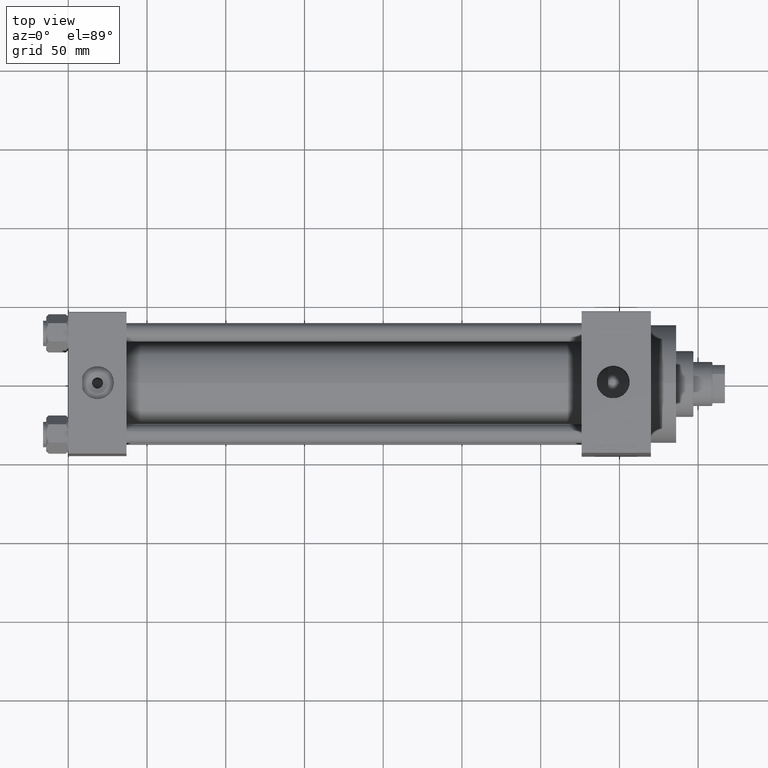
[diagram: clean part render]
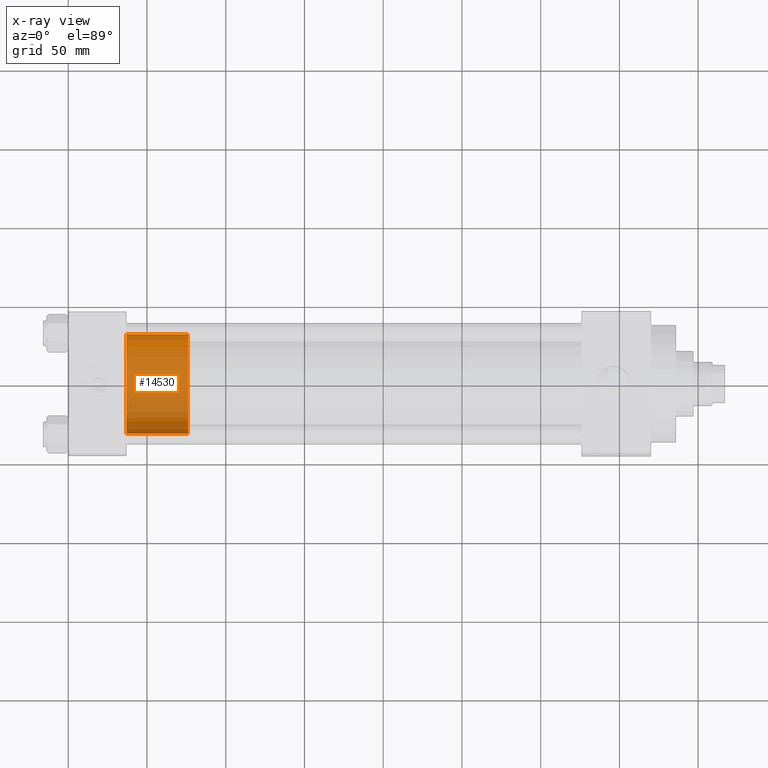
[diagram: x-ray — body ghosted, one internal face saturated and labeled with its STEP entity id]
A machine part, top view, then the same camera in x-ray: the body is ghosted and one INTERNAL B-rep face — a face not visible from any outside direction — is saturated and labeled: STEP entity #14530.
In plain terms, the highlighted cylindrical surface (partial cylindrical patch) has radius 31.5 mm, axis along (-1, 0, 0).
Its self-contained STEP definition (entity closure, byte-faithful):
#70 = EDGE_LOOP ( 'NONE', ( #10404, #18411, #5675, #25125 ) ) ;
#609 = AXIS2_PLACEMENT_3D ( 'NONE', #2185, #31686, #31203 ) ;
#753 = EDGE_CURVE ( 'NONE', #7743, #30943, #47114, .T. ) ;
#1270 = EDGE_CURVE ( 'NONE', #7743, #12468, #5201, .T. ) ;
#2096 = AXIS2_PLACEMENT_3D ( 'NONE', #6653, #39965, #36847 ) ;
#2185 = CARTESIAN_POINT ( 'NONE',  ( 0.000000000000000000, 0.000000000000000000, 39.00000000000000000 ) ) ;
#3800 = DIRECTION ( 'NONE',  ( -0.000000000000000000, -0.000000000000000000, -1.000000000000000000 ) ) ;
#5201 = CIRCLE ( 'NONE', #609, 31.50000000000000000 ) ;
#5675 = ORIENTED_EDGE ( 'NONE', *, *, #15368, .T. ) ;
#6653 = CARTESIAN_POINT ( 'NONE',  ( 0.000000000000000000, 0.000000000000000000, 0.000000000000000000 ) ) ;
#7743 = VERTEX_POINT ( 'NONE', #16748 ) ;
#10404 = ORIENTED_EDGE ( 'NONE', *, *, #1270, .F. ) ;
#11204 = CARTESIAN_POINT ( 'NONE',  ( -31.50000000000000000, 0.000000000000000000, 39.00000000000000000 ) ) ;
#11293 = VECTOR ( 'NONE', #3800, 1000.000000000000000 ) ;
#12468 = VERTEX_POINT ( 'NONE', #25761 ) ;
#13213 = CARTESIAN_POINT ( 'NONE',  ( 0.000000000000000000, 0.000000000000000000, 39.00000000000000000 ) ) ;
#14151 = DIRECTION ( 'NONE',  ( -0.000000000000000000, -0.000000000000000000, -1.000000000000000000 ) ) ;
#14530 = ADVANCED_FACE ( 'NONE', ( #24967 ), #36220, .T. ) ;
#15368 = EDGE_CURVE ( 'NONE', #30943, #23168, #38851, .T. ) ;
#16748 = CARTESIAN_POINT ( 'NONE',  ( 31.50000000000000000, 3.857637417314162689E-15, 39.00000000000000000 ) ) ;
#16882 = CARTESIAN_POINT ( 'NONE',  ( 31.50000000000000000, 3.857637417314162689E-15, 0.000000000000000000 ) ) ;
#18205 = VECTOR ( 'NONE', #25546, 1000.000000000000000 ) ;
#18411 = ORIENTED_EDGE ( 'NONE', *, *, #753, .T. ) ;
#18559 = CARTESIAN_POINT ( 'NONE',  ( -31.50000000000000000, 0.000000000000000000, 0.000000000000000000 ) ) ;
#22029 = LINE ( 'NONE', #11204, #11293 ) ;
#23168 = VERTEX_POINT ( 'NONE', #18559 ) ;
#24967 = FACE_OUTER_BOUND ( 'NONE', #70, .T. ) ;
#25125 = ORIENTED_EDGE ( 'NONE', *, *, #45637, .F. ) ;
#25546 = DIRECTION ( 'NONE',  ( -0.000000000000000000, -0.000000000000000000, -1.000000000000000000 ) ) ;
#25761 = CARTESIAN_POINT ( 'NONE',  ( -31.50000000000000000, 0.000000000000000000, 39.00000000000000000 ) ) ;
#27856 = DIRECTION ( 'NONE',  ( -1.000000000000000000, 0.000000000000000000, 0.000000000000000000 ) ) ;
#30943 = VERTEX_POINT ( 'NONE', #16882 ) ;
#31203 = DIRECTION ( 'NONE',  ( 1.000000000000000000, 0.000000000000000000, 0.000000000000000000 ) ) ;
#31686 = DIRECTION ( 'NONE',  ( 0.000000000000000000, 0.000000000000000000, 1.000000000000000000 ) ) ;
#33433 = CARTESIAN_POINT ( 'NONE',  ( 31.50000000000000000, 3.857637417314162689E-15, 39.00000000000000000 ) ) ;
#36220 = CYLINDRICAL_SURFACE ( 'NONE', #43411, 31.50000000000000000 ) ;
#36847 = DIRECTION ( 'NONE',  ( 1.000000000000000000, 0.000000000000000000, 0.000000000000000000 ) ) ;
#38851 = CIRCLE ( 'NONE', #2096, 31.50000000000000000 ) ;
#39965 = DIRECTION ( 'NONE',  ( 0.000000000000000000, 0.000000000000000000, 1.000000000000000000 ) ) ;
#43411 = AXIS2_PLACEMENT_3D ( 'NONE', #13213, #14151, #27856 ) ;
#45637 = EDGE_CURVE ( 'NONE', #12468, #23168, #22029, .T. ) ;
#47114 = LINE ( 'NONE', #33433, #18205 ) ;